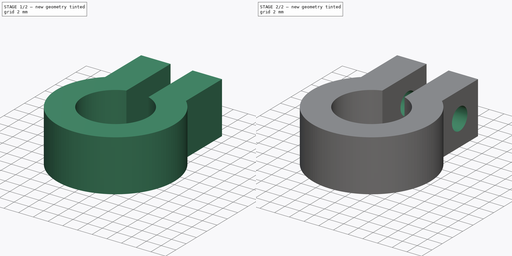
[diagram: build sequence overview — one tinted view per stage of 2, left to right]
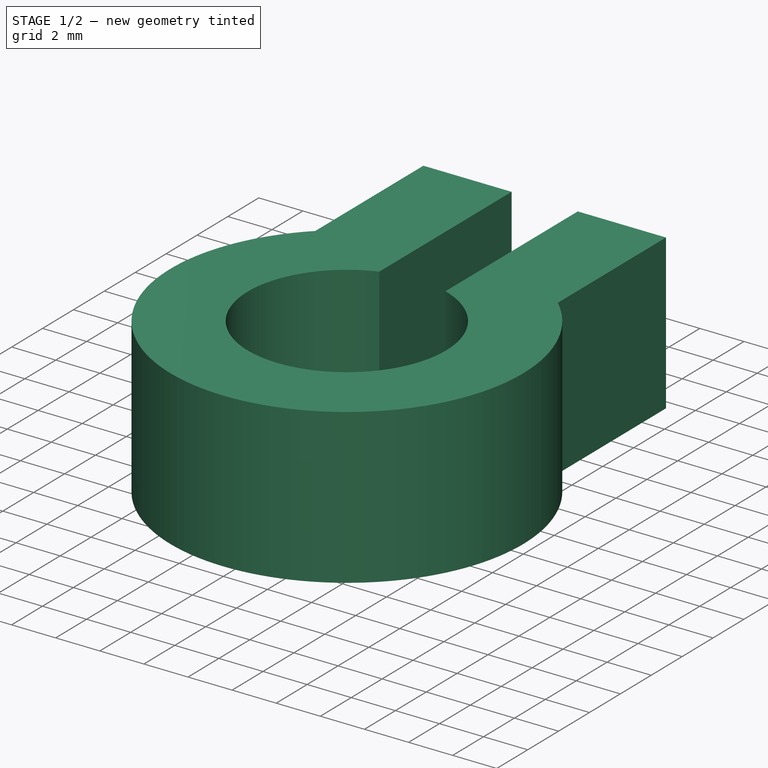
[diagram: stage 1 of 2 — iso view after this stage's code; geometry added in this stage tinted green]
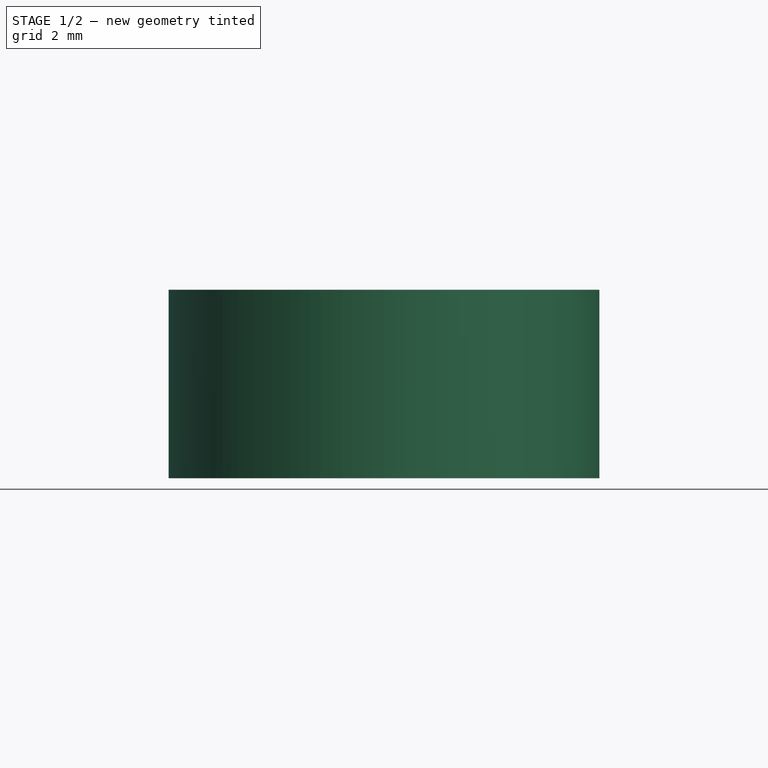
[diagram: stage 1 of 2 — front view after this stage's code; geometry added in this stage tinted green]
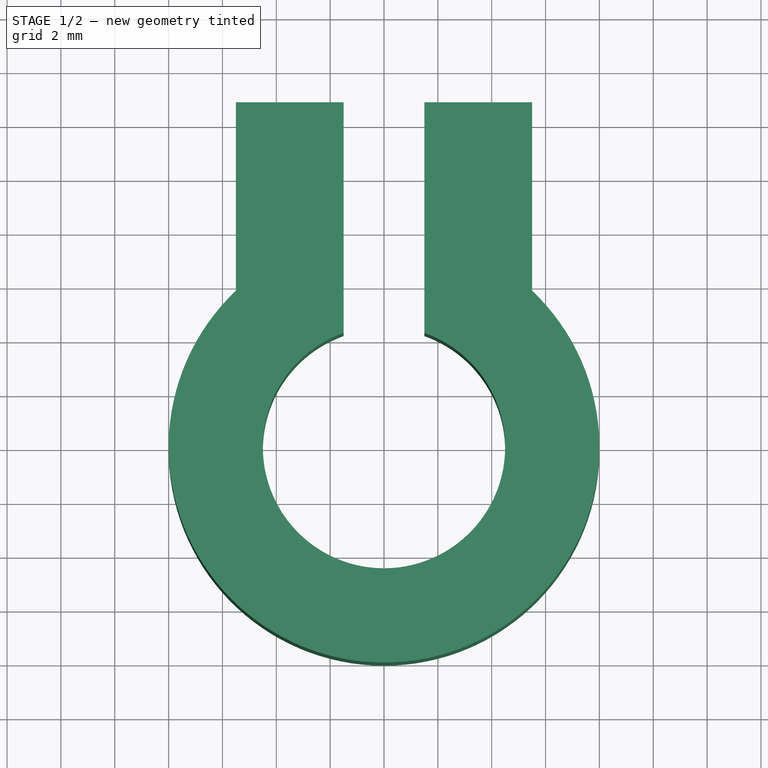
[diagram: stage 1 of 2 — top view after this stage's code; geometry added in this stage tinted green]
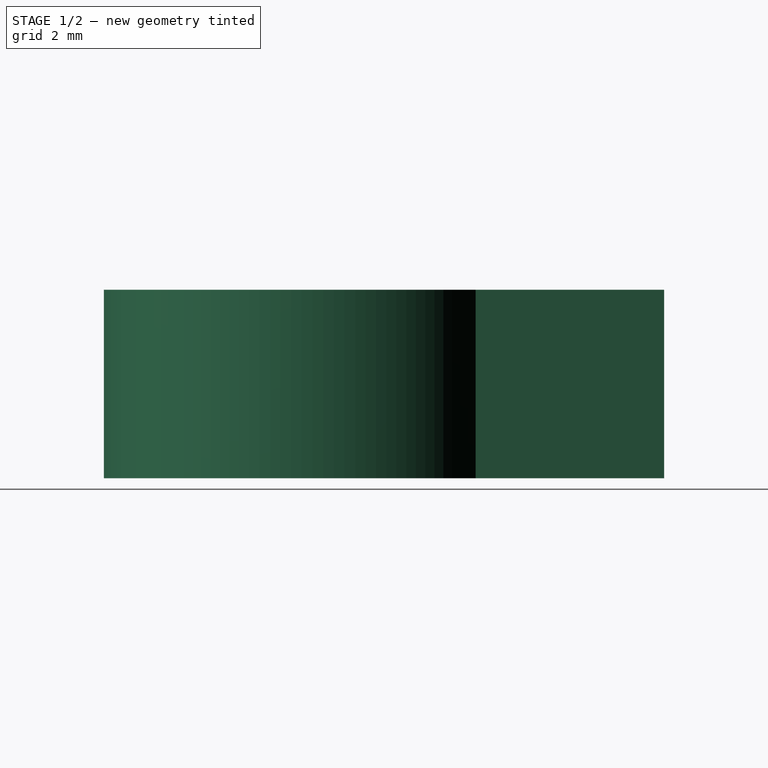
[diagram: stage 1 of 2 — right view after this stage's code; geometry added in this stage tinted green]
FCSTD DOCUMENT  (FreeCAD 1.0R39109 (Git))
Label: lock_metal
License: All rights reserved
LicenseURL: https://en.wikipedia.org/wiki/All_rights_reserved
objects: Sketcher::SketchObject×2, PartDesign::Pad×1, PartDesign::Pocket×1, PartDesign::Body×1
note: 11 computed .brp shape members not serialized (recipe doc carries the construction recipe); baked Part::Feature solids carry a one-line shape summary decoded from their .brp

FEATURE [Sketcher::SketchObject] Sketch
  ArcFitTolerance = 1e-06
  AttachmentSupport = -> [XY_Plane]
  FullyConstrained = true
  MakeInternals = false
  MapMode = 5
  sketch-geometry (8):
    g0: ArcOfCircle CenterX=0 CenterY=0 CenterZ=0 NormalX=0 NormalY=0 NormalZ=1 AngleXU=0 Radius=4.5 StartAngle=1.91063 EndAngle=7.51414
    g1: ArcOfCircle CenterX=0 CenterY=0 CenterZ=0 NormalX=0 NormalY=0 NormalZ=1 AngleXU=0 Radius=8 StartAngle=2.32884 EndAngle=7.09594
    g2: LineSegment StartX=-5.5 StartY=5.80948 StartZ=0 EndX=-5.5 EndY=12.8095 EndZ=0
    g3: LineSegment StartX=-5.5 StartY=12.8095 StartZ=0 EndX=-1.5 EndY=12.8095 EndZ=0
    g4: LineSegment StartX=-1.5 StartY=12.8095 StartZ=0 EndX=-1.5 EndY=4.24264 EndZ=0
    g5: LineSegment StartX=1.5 StartY=4.24264 StartZ=0 EndX=1.5 EndY=12.8095 EndZ=0
    g6: LineSegment StartX=1.5 StartY=12.8095 StartZ=0 EndX=5.5 EndY=12.8095 EndZ=0
    g7: LineSegment StartX=5.5 StartY=12.8095 StartZ=0 EndX=5.5 EndY=5.80948 EndZ=0
  constraints (24):
    c: Coincident(g0,g-1)
    c: Radius(g0) = 4.5
    c: Horizontal(g0,g0)
    c: Coincident(g1,g0)
    c: Horizontal(g1,g1)
    c: Coincident(g2,g1)
    c: Vertical(g2)
    c: Coincident(g3,g2)
    c: Horizontal(g3)
    c: Coincident(g4,g3)
    c: Coincident(g4,g0)
    c: Coincident(g5,g0)
    c: Vertical(g5)
    c: Coincident(g6,g5)
    c: Coincident(g7,g6)
    c: Coincident(g7,g1)
    c: Vertical(g7)
    c: Vertical(g4)
    c: Horizontal(g6)
    c: Horizontal(g5,g3)
    c: Radius(g1) = 8
    c: DistanceX(g6,g6) = 4
    c: DistanceX(g0,g0) = 3
    c: DistanceY(g2,g2) = 7
FEATURE [PartDesign::Pad] Pad
  Direction = (0,0,1)
  Length = 7
  Length2 = 10
  Profile = -> Sketch
  ReferenceAxis = -> Sketch [N_Axis]
  Refine = true
  Suppressed = false
  Type = 0
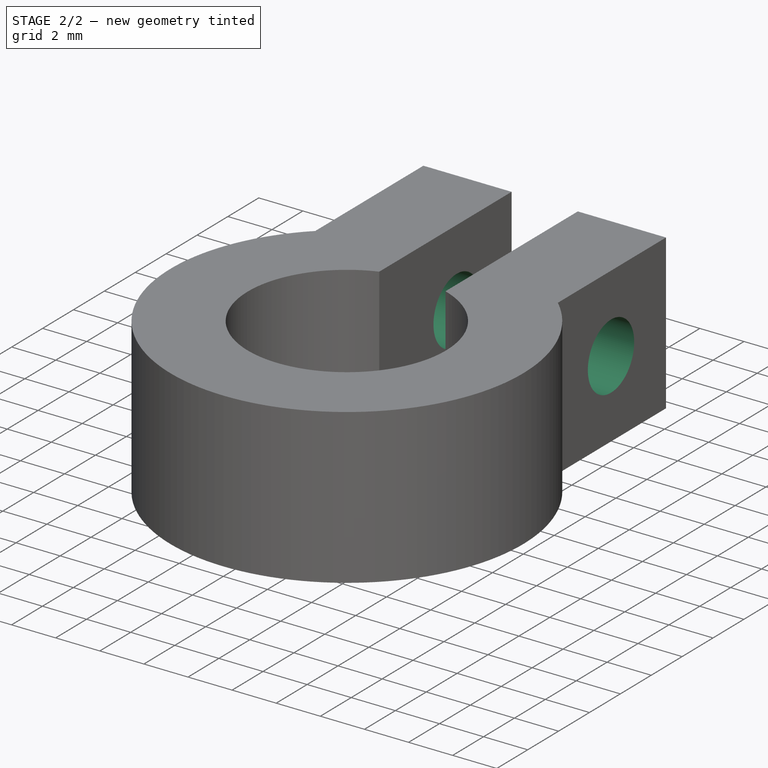
[diagram: stage 2 of 2 — iso view after this stage's code; geometry added in this stage tinted green]
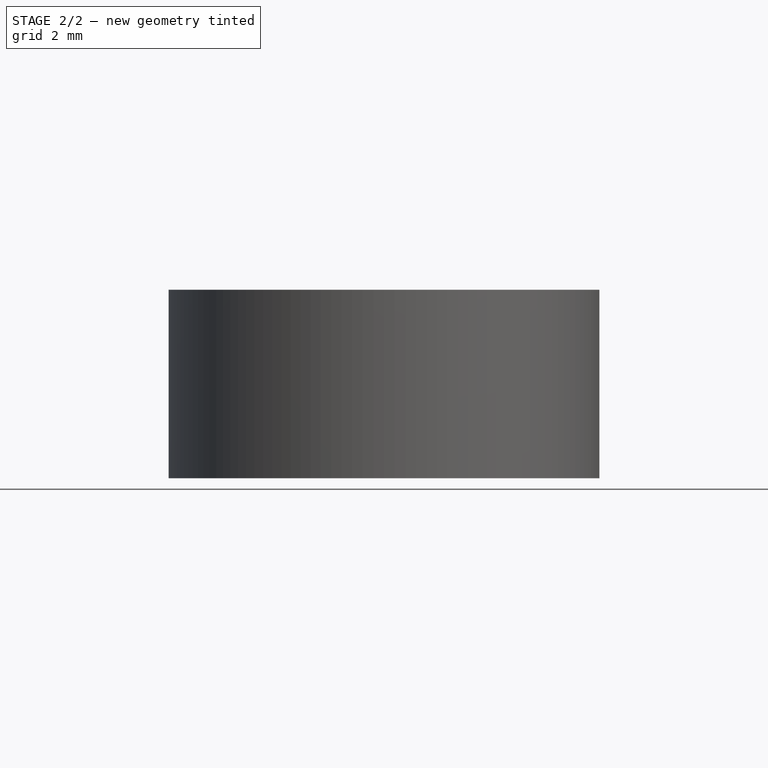
[diagram: stage 2 of 2 — front view after this stage's code; geometry added in this stage tinted green]
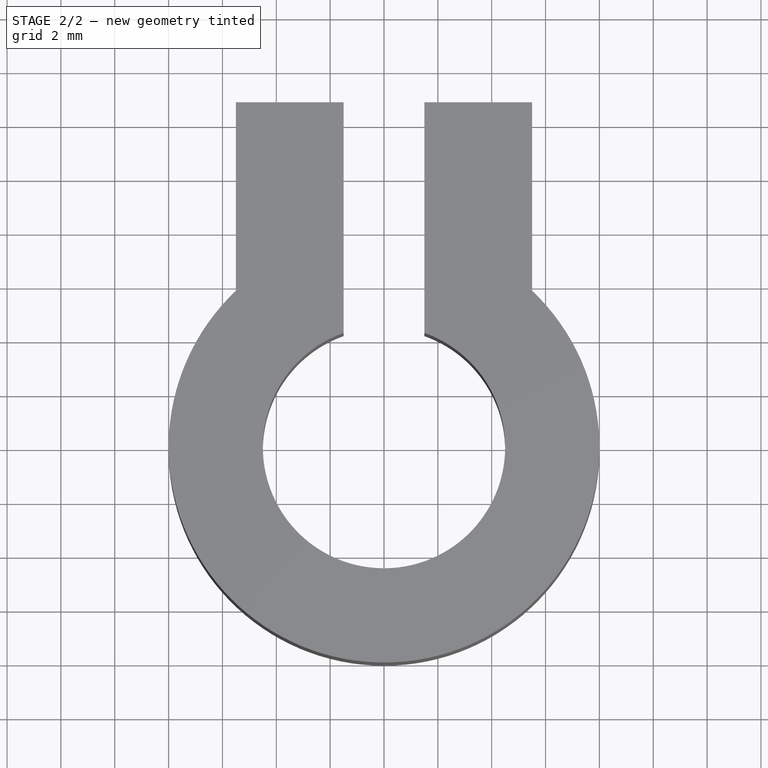
[diagram: stage 2 of 2 — top view after this stage's code; geometry added in this stage tinted green]
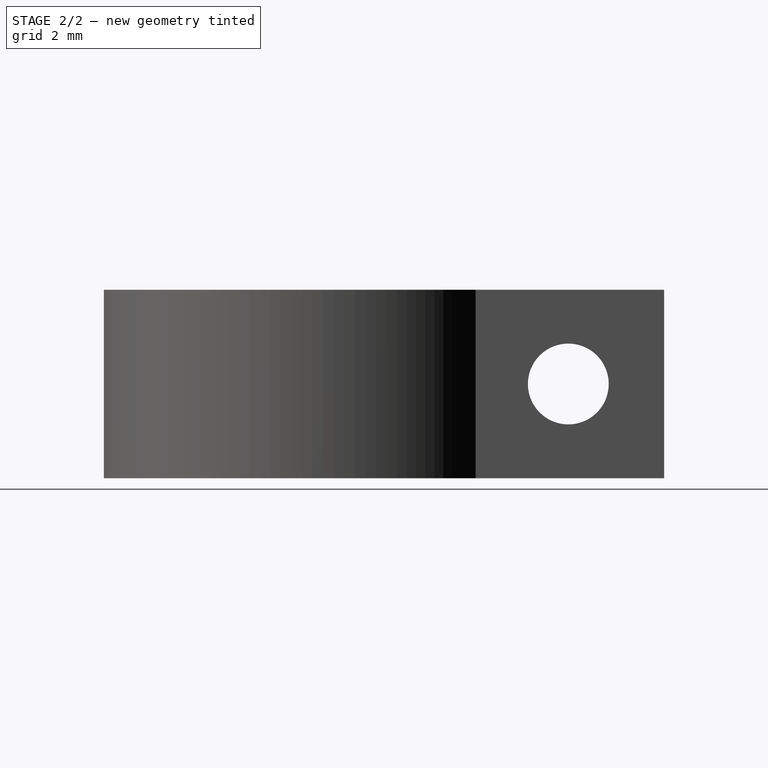
[diagram: stage 2 of 2 — right view after this stage's code; geometry added in this stage tinted green]
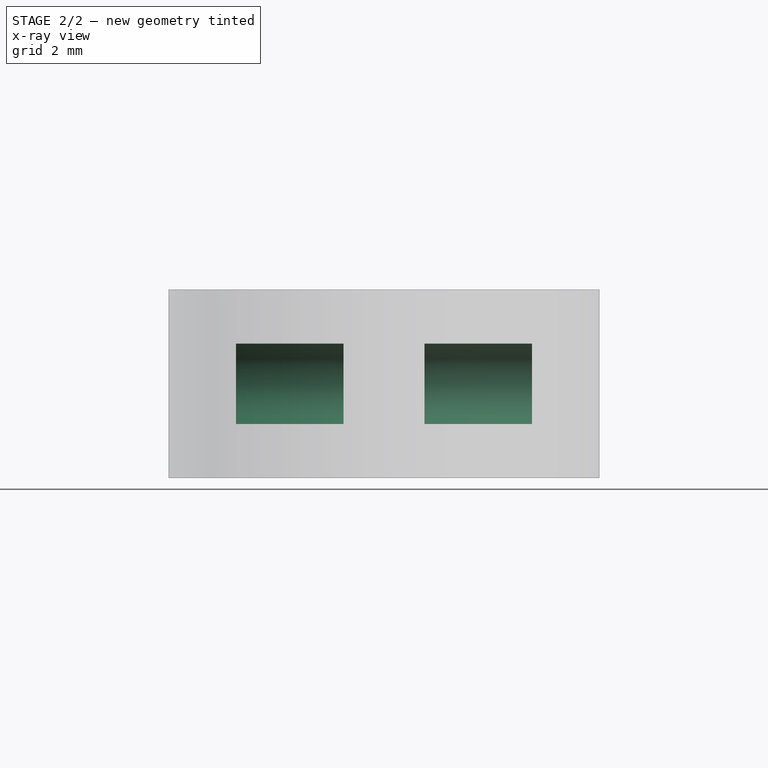
[diagram: stage 2 of 2 — x-ray composite at the front view; earlier geometry ghosted, this stage's added geometry solid]
FEATURE [Sketcher::SketchObject] Sketch001
  ArcFitTolerance = 1e-06
  AttachmentSupport = -> [Pad]
  FullyConstrained = true
  MakeInternals = false
  MapMode = 5
  Placement = pos=(5.5,0,0) rot=(0.57735,0.57735,0.57735;2.0944rad)
  sketch-geometry (5):
    g0: LineSegment [constr] StartX=5.75 StartY=7 StartZ=0 EndX=5.75 EndY=0 EndZ=0
    g1: LineSegment [constr] StartX=5.75 StartY=0 StartZ=0 EndX=12.75 EndY=0 EndZ=0
    g2: LineSegment [constr] StartX=12.75 StartY=0 StartZ=0 EndX=12.75 EndY=7 EndZ=0
    g3: LineSegment [constr] StartX=12.75 StartY=7 StartZ=0 EndX=5.75 EndY=7 EndZ=0
    g4: Circle CenterX=9.25 CenterY=3.5 CenterZ=0 NormalX=0 NormalY=0 NormalZ=1 AngleXU=0 Radius=1.5
  constraints (14):
    c: Coincident(g0,g1)
    c: Coincident(g1,g2)
    c: Coincident(g2,g3)
    c: Coincident(g3,g0)
    c: Vertical(g0)
    c: Vertical(g2)
    c: Horizontal(g1)
    c: Horizontal(g3)
    c: PointOnObject(g1,g-1)
    c: Symmetric(g0,g1,g4)
    c: Diameter(g4) = 3
    c: Equal(g3,g2)
    c: DistanceX(g3,g3) = 7
    c: DistanceX(g-1,g0) = 5.75
FEATURE [PartDesign::Pocket] Pocket
  BaseFeature = -> Pad
  Direction = (-1,0,0)
  Length = 5
  Length2 = 5
  Profile = -> Sketch001
  ReferenceAxis = -> Sketch001 [N_Axis]
  Refine = true
  Suppressed = false
  Type = 1
FEATURE [PartDesign::Body] Body
  AllowCompound = false
  Group = -> [Sketch,Pad,Sketch001,Pocket]
  Origin = -> Origin
  Tip = -> Pocket
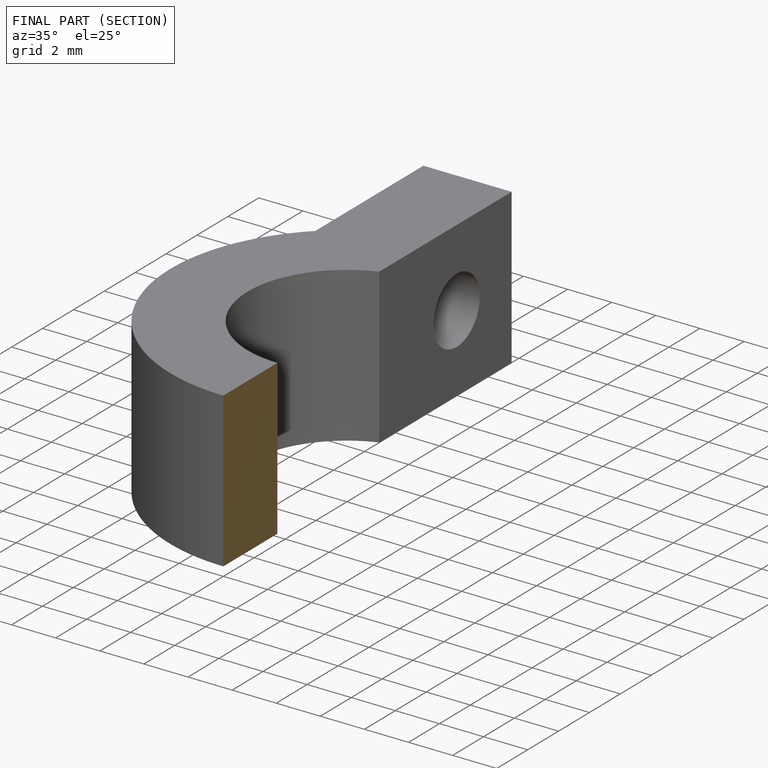
[diagram: finished part — half-section view (interior)]
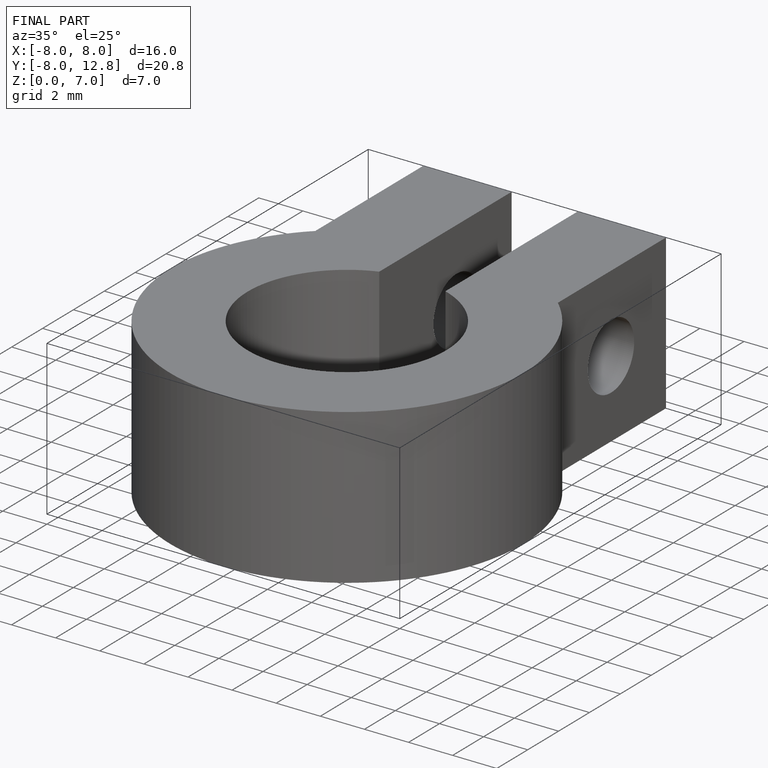
[diagram: finished part — iso view with bounding-box wireframe]
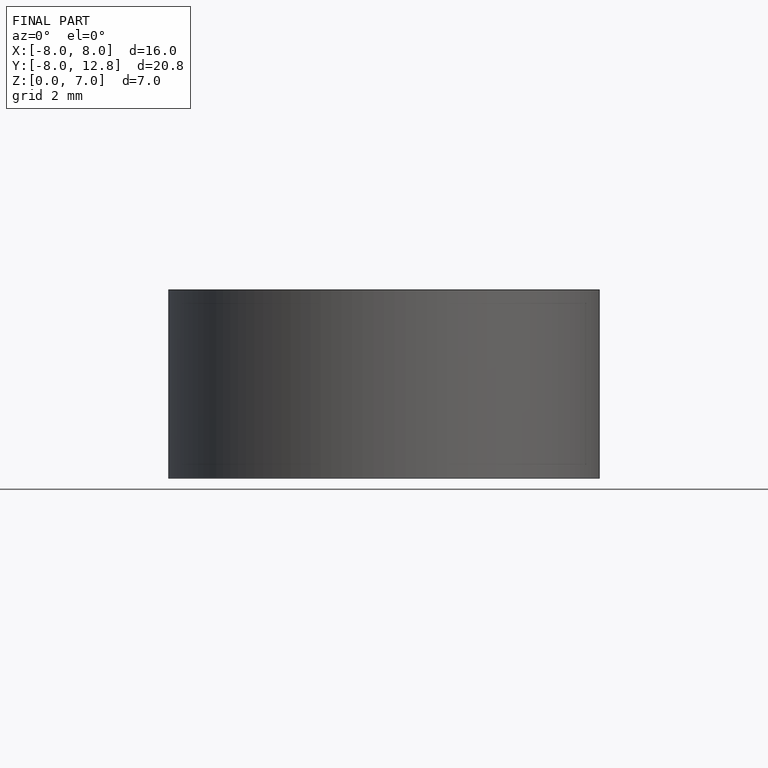
[diagram: finished part — front view with bounding-box wireframe]
